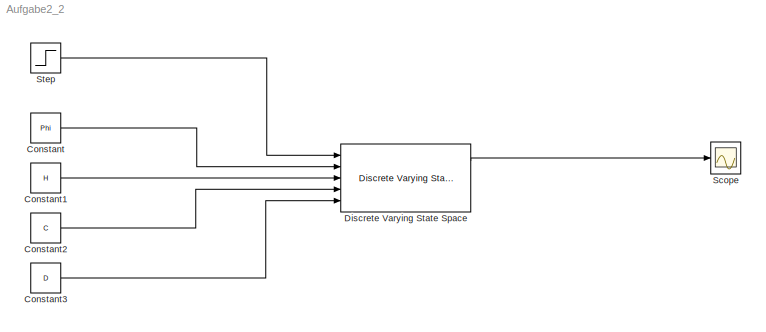
MODEL Aufgabe2_2
KIND model
BLOCK [Constant] Constant
  SID = 2
  Value = Phi
  VectorParams1D = off
BLOCK [Constant] Constant1
  SID = 3
  Value = H
  VectorParams1D = off
BLOCK [Constant] Constant2
  SID = 4
  Value = C
  VectorParams1D = off
BLOCK [Constant] Constant3
  SID = 5
  Value = D
  VectorParams1D = off
BLOCK [Reference] Discrete Varying State Space  REF=cstblocks/Linear Parameter Varying/Discrete Varying State Space
  OutputDX = on
  OutputX = on
  Ports = [5, 3]
  SID = 1
  SourceBlock = cstblocks/Linear Parameter Varying/Discrete Varying State Space
  SourceProductBaseCode = CT
  SourceProductName = Control System Toolbox
  SourceType = Discrete Varying State Space
  Ts = 15e-3
  x0 = 0
BLOCK [Scope] Scope
  Floating = off
  NumInputPorts = 1
  Ports = [1]
  SID = 7
  ScopeSpecificationString = Simulink.scopes.TimeScopeBlockCfg('CurrentConfiguration', extmgr.ConfigurationSet(extmgr.Configuration('Core','General UI',true),extmgr.Configuration('Core','Source UI',true),extmgr.Configuration('Sources','WiredSimulink',true),extmgr.Configuration('Visuals','Time Domain',true,'SerializedDisplays',{struct('MinYLimReal','-84593.63279','MaxYLimReal','2032874.31842','YLabelReal','','MinYLimMag','   0...<+1445ch>
BLOCK [Step] Step
  After = 0.2
  SID = 6
  SampleTime = 0
LINE Constant1:1 -> Discrete Varying State Space:3
LINE Constant2:1 -> Discrete Varying State Space:4
LINE Constant3:1 -> Discrete Varying State Space:5
LINE Constant:1 -> Discrete Varying State Space:2
LINE Discrete Varying State Space:1 -> Scope:1
LINE Step:1 -> Discrete Varying State Space:1
